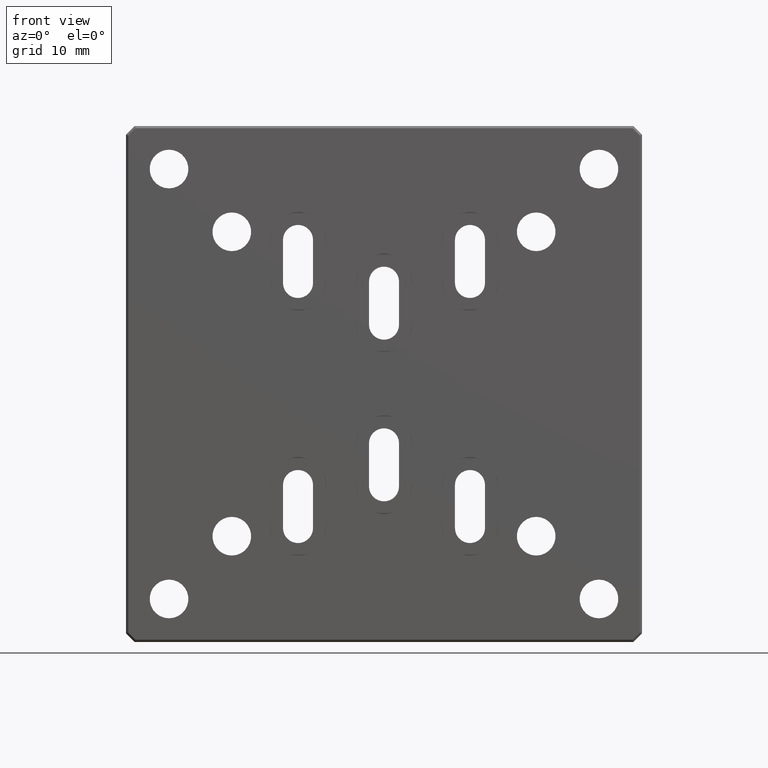
[diagram: clean part render]
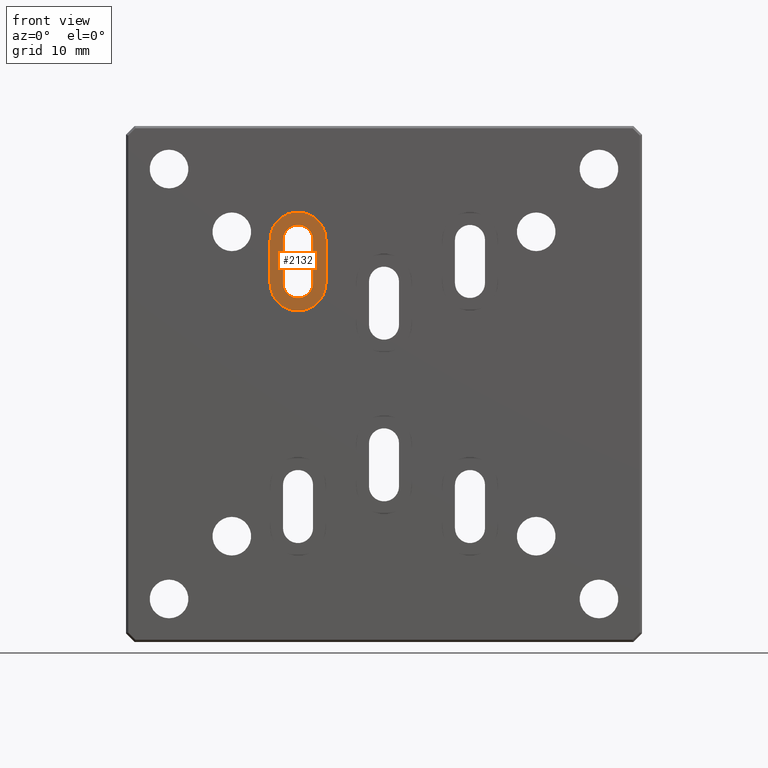
[diagram: same view with one face highlighted and labeled with its STEP entity id]
A machine part, front view. The second image highlights one B-rep face of the part: STEP entity #2132.
In plain terms, the highlighted planar face has unit normal (0, -1, 0).
Its self-contained STEP definition (entity closure, byte-faithful):
#10 = ORIENTED_EDGE ( 'NONE', *, *, #2144, .T. ) ;
#51 = EDGE_CURVE ( 'NONE', #2115, #1001, #2962, .T. ) ;
#103 = EDGE_CURVE ( 'NONE', #1333, #2115, #2127, .T. ) ;
#180 = CARTESIAN_POINT ( 'NONE',  ( -11.75000000000000178, 2.500000000000000000, 16.75000000000000355 ) ) ;
#190 = FACE_OUTER_BOUND ( 'NONE', #1967, .T. ) ;
#201 = CARTESIAN_POINT ( 'NONE',  ( -10.00000000000000178, 2.500000000000000000, 16.75000000000000355 ) ) ;
#202 = DIRECTION ( 'NONE',  ( 0.000000000000000000, -1.000000000000000000, 0.000000000000000000 ) ) ;
#228 = ORIENTED_EDGE ( 'NONE', *, *, #984, .F. ) ;
#312 = AXIS2_PLACEMENT_3D ( 'NONE', #2311, #832, #1770 ) ;
#392 = DIRECTION ( 'NONE',  ( 0.000000000000000000, 0.000000000000000000, -1.000000000000000000 ) ) ;
#529 = EDGE_CURVE ( 'NONE', #1136, #634, #2318, .T. ) ;
#615 = ORIENTED_EDGE ( 'NONE', *, *, #2567, .T. ) ;
#634 = VERTEX_POINT ( 'NONE', #2364 ) ;
#661 = CARTESIAN_POINT ( 'NONE',  ( -8.250000000000001776, 2.500000000000000000, 11.75000000000000355 ) ) ;
#671 = CARTESIAN_POINT ( 'NONE',  ( -8.250000000000001776, 2.500000000000000000, 16.75000000000000355 ) ) ;
#817 = CIRCLE ( 'NONE', #2095, 1.749999999999999778 ) ;
#832 = DIRECTION ( 'NONE',  ( 0.000000000000000000, -1.000000000000000000, 0.000000000000000000 ) ) ;
#847 = CARTESIAN_POINT ( 'NONE',  ( -8.250000000000001776, 2.500000000000000000, 16.75000000000000355 ) ) ;
#984 = EDGE_CURVE ( 'NONE', #1047, #1333, #2480, .T. ) ;
#1001 = VERTEX_POINT ( 'NONE', #671 ) ;
#1047 = VERTEX_POINT ( 'NONE', #2647 ) ;
#1099 = DIRECTION ( 'NONE',  ( 0.000000000000000000, 0.000000000000000000, -1.000000000000000000 ) ) ;
#1128 = DIRECTION ( 'NONE',  ( -0.000000000000000000, -0.000000000000000000, 1.000000000000000000 ) ) ;
#1133 = PLANE ( 'NONE',  #2930 ) ;
#1136 = VERTEX_POINT ( 'NONE', #2814 ) ;
#1146 = FACE_BOUND ( 'NONE', #1564, .T. ) ;
#1183 = ORIENTED_EDGE ( 'NONE', *, *, #51, .F. ) ;
#1214 = AXIS2_PLACEMENT_3D ( 'NONE', #2190, #1518, #2906 ) ;
#1326 = CARTESIAN_POINT ( 'NONE',  ( -13.25000000000000178, 2.500000000000000000, 16.75000000000000355 ) ) ;
#1327 = CARTESIAN_POINT ( 'NONE',  ( -13.25000000000000178, 2.500000000000000000, 16.75000000000000355 ) ) ;
#1333 = VERTEX_POINT ( 'NONE', #3044 ) ;
#1345 = CARTESIAN_POINT ( 'NONE',  ( -10.00000000000000178, 2.500000000000000000, 16.75000000000000355 ) ) ;
#1369 = CIRCLE ( 'NONE', #1214, 3.249999999999999556 ) ;
#1394 = CARTESIAN_POINT ( 'NONE',  ( -13.25000000000000178, 2.500000000000000000, 11.75000000000000355 ) ) ;
#1434 = ORIENTED_EDGE ( 'NONE', *, *, #2110, .F. ) ;
#1518 = DIRECTION ( 'NONE',  ( 0.000000000000000000, -1.000000000000000000, 0.000000000000000000 ) ) ;
#1564 = EDGE_LOOP ( 'NONE', ( #1434, #1183, #2179, #228 ) ) ;
#1572 = DIRECTION ( 'NONE',  ( 0.000000000000000000, -0.000000000000000000, -1.000000000000000000 ) ) ;
#1618 = LINE ( 'NONE', #1327, #1899 ) ;
#1708 = EDGE_CURVE ( 'NONE', #2598, #1136, #1369, .T. ) ;
#1770 = DIRECTION ( 'NONE',  ( 0.000000000000000000, 0.000000000000000000, -1.000000000000000000 ) ) ;
#1826 = CARTESIAN_POINT ( 'NONE',  ( -6.750000000000002665, 2.500000000000000000, 16.75000000000000355 ) ) ;
#1899 = VECTOR ( 'NONE', #2542, 1000.000000000000000 ) ;
#1967 = EDGE_LOOP ( 'NONE', ( #615, #10, #2705, #2803 ) ) ;
#2027 = CARTESIAN_POINT ( 'NONE',  ( -10.00000000000000178, 2.500000000000000000, 16.75000000000000355 ) ) ;
#2049 = DIRECTION ( 'NONE',  ( 0.000000000000000000, -1.000000000000000000, 0.000000000000000000 ) ) ;
#2079 = DIRECTION ( 'NONE',  ( -0.000000000000000000, -0.000000000000000000, 1.000000000000000000 ) ) ;
#2095 = AXIS2_PLACEMENT_3D ( 'NONE', #1345, #2049, #1099 ) ;
#2110 = EDGE_CURVE ( 'NONE', #1001, #1047, #817, .T. ) ;
#2115 = VERTEX_POINT ( 'NONE', #661 ) ;
#2127 = CIRCLE ( 'NONE', #312, 1.749999999999999778 ) ;
#2132 = ADVANCED_FACE ( 'NONE', ( #1146, #190 ), #1133, .T. ) ;
#2144 = EDGE_CURVE ( 'NONE', #2386, #2598, #1618, .T. ) ;
#2179 = ORIENTED_EDGE ( 'NONE', *, *, #103, .F. ) ;
#2190 = CARTESIAN_POINT ( 'NONE',  ( -10.00000000000000178, 2.500000000000000000, 11.75000000000000355 ) ) ;
#2311 = CARTESIAN_POINT ( 'NONE',  ( -10.00000000000000178, 2.500000000000000000, 11.75000000000000355 ) ) ;
#2318 = LINE ( 'NONE', #1826, #2727 ) ;
#2327 = VECTOR ( 'NONE', #2079, 1000.000000000000000 ) ;
#2364 = CARTESIAN_POINT ( 'NONE',  ( -6.750000000000002665, 2.500000000000000000, 16.75000000000000355 ) ) ;
#2383 = VECTOR ( 'NONE', #392, 1000.000000000000000 ) ;
#2386 = VERTEX_POINT ( 'NONE', #1326 ) ;
#2480 = LINE ( 'NONE', #180, #2383 ) ;
#2542 = DIRECTION ( 'NONE',  ( 0.000000000000000000, 0.000000000000000000, -1.000000000000000000 ) ) ;
#2567 = EDGE_CURVE ( 'NONE', #634, #2386, #2593, .T. ) ;
#2593 = CIRCLE ( 'NONE', #2841, 3.249999999999999556 ) ;
#2598 = VERTEX_POINT ( 'NONE', #1394 ) ;
#2647 = CARTESIAN_POINT ( 'NONE',  ( -11.75000000000000178, 2.500000000000000000, 16.75000000000000355 ) ) ;
#2705 = ORIENTED_EDGE ( 'NONE', *, *, #1708, .T. ) ;
#2727 = VECTOR ( 'NONE', #1128, 1000.000000000000000 ) ;
#2759 = DIRECTION ( 'NONE',  ( 0.000000000000000000, -1.000000000000000000, 0.000000000000000000 ) ) ;
#2803 = ORIENTED_EDGE ( 'NONE', *, *, #529, .T. ) ;
#2814 = CARTESIAN_POINT ( 'NONE',  ( -6.750000000000002665, 2.500000000000000000, 11.75000000000000355 ) ) ;
#2841 = AXIS2_PLACEMENT_3D ( 'NONE', #201, #2759, #3011 ) ;
#2906 = DIRECTION ( 'NONE',  ( 0.000000000000000000, 0.000000000000000000, -1.000000000000000000 ) ) ;
#2930 = AXIS2_PLACEMENT_3D ( 'NONE', #2027, #202, #1572 ) ;
#2962 = LINE ( 'NONE', #847, #2327 ) ;
#3011 = DIRECTION ( 'NONE',  ( 0.000000000000000000, 0.000000000000000000, -1.000000000000000000 ) ) ;
#3044 = CARTESIAN_POINT ( 'NONE',  ( -11.75000000000000178, 2.500000000000000000, 11.75000000000000355 ) ) ;